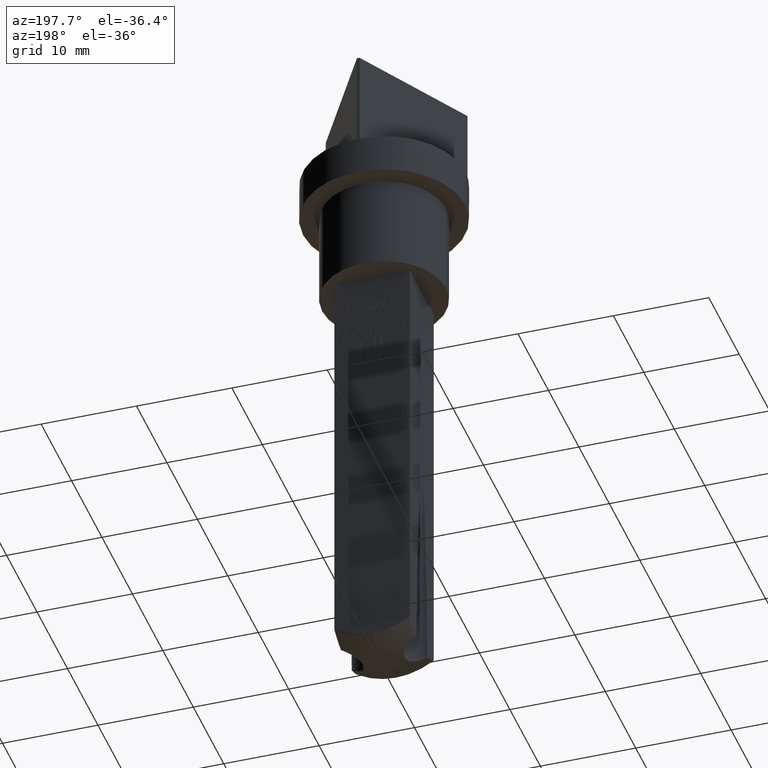
[diagram: clean part render]
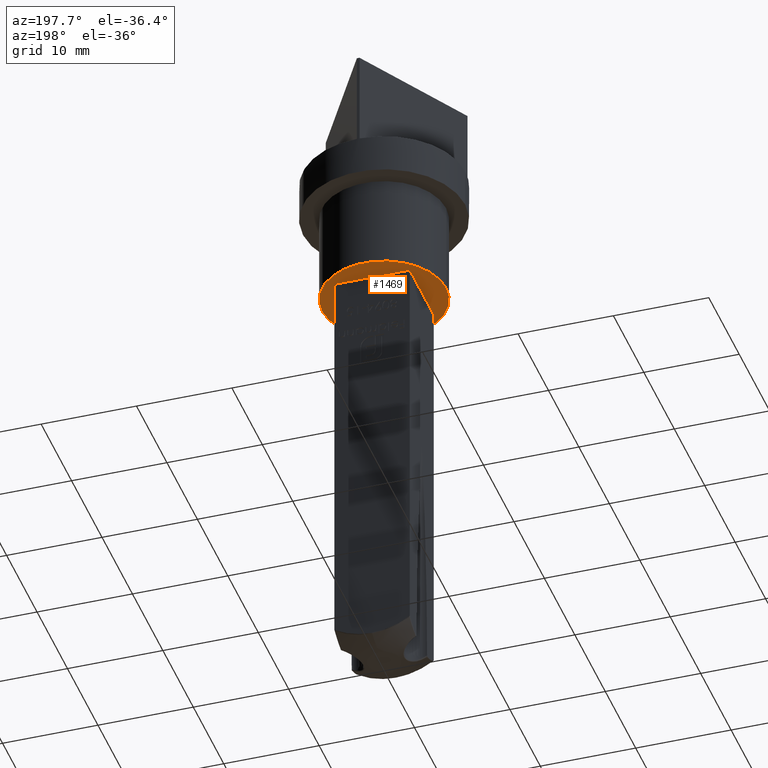
[diagram: same view with one face highlighted and labeled with its STEP entity id]
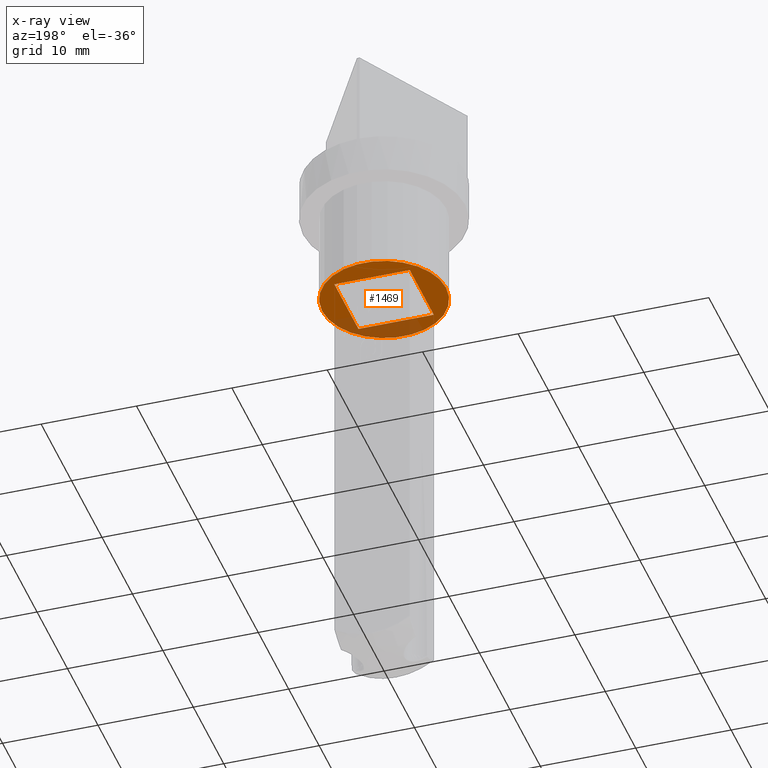
[diagram: x-ray of the same camera — body ghosted, the highlighted face saturated]
A machine part, auxiliary view. The second image highlights one B-rep face of the part: STEP entity #1469.
The next image is the same camera in x-ray: the body ghosted, the highlighted face saturated — about 26% of this face is hidden behind the body in this view.
In plain terms, the highlighted planar face has unit normal (0, 0, 1).
Its self-contained STEP definition (entity closure, byte-faithful):
#1189 = ORIENTED_EDGE ( 'NONE', *, *, #9612, .F. ) ;
#1469 = ADVANCED_FACE ( 'NONE', ( #5095, #7715 ), #5493, .F. ) ;
#1729 = EDGE_CURVE ( 'NONE', #10916, #8835, #13179, .T. ) ;
#1748 = LINE ( 'NONE', #10848, #10582 ) ;
#1759 = DIRECTION ( 'NONE',  ( -0.000000000000000000, -0.000000000000000000, 1.000000000000000000 ) ) ;
#1864 = DIRECTION ( 'NONE',  ( 1.000000000000000000, 0.000000000000000000, 0.000000000000000000 ) ) ;
#2040 = ORIENTED_EDGE ( 'NONE', *, *, #3616, .F. ) ;
#2333 = CARTESIAN_POINT ( 'NONE',  ( -6.500000000000000000, 7.960204194457795477E-16, -7.000000000000000000 ) ) ;
#2437 = ORIENTED_EDGE ( 'NONE', *, *, #1729, .F. ) ;
#2587 = AXIS2_PLACEMENT_3D ( 'NONE', #8484, #4042, #1864 ) ;
#2653 = CARTESIAN_POINT ( 'NONE',  ( 3.950000000000000178, 3.950000000000001066, -7.000000000000000000 ) ) ;
#3406 = ORIENTED_EDGE ( 'NONE', *, *, #6118, .F. ) ;
#3582 = EDGE_CURVE ( 'NONE', #12597, #13206, #5754, .T. ) ;
#3616 = EDGE_CURVE ( 'NONE', #13206, #12597, #3678, .T. ) ;
#3678 = CIRCLE ( 'NONE', #2587, 6.500000000000000000 ) ;
#3957 = CARTESIAN_POINT ( 'NONE',  ( 3.950000000000000178, 3.950000000000001066, -7.000000000000000000 ) ) ;
#4042 = DIRECTION ( 'NONE',  ( -0.000000000000000000, -0.000000000000000000, 1.000000000000000000 ) ) ;
#4145 = CARTESIAN_POINT ( 'NONE',  ( -3.950000000000001066, 3.950000000000001066, -7.000000000000000000 ) ) ;
#4319 = DIRECTION ( 'NONE',  ( 1.000000000000000000, 0.000000000000000000, -0.000000000000000000 ) ) ;
#4320 = CARTESIAN_POINT ( 'NONE',  ( -3.950000000000001066, 3.950000000000001066, -7.000000000000000000 ) ) ;
#5095 = FACE_BOUND ( 'NONE', #6994, .T. ) ;
#5331 = DIRECTION ( 'NONE',  ( -1.000000000000000000, 0.000000000000000000, 0.000000000000000000 ) ) ;
#5493 = PLANE ( 'NONE',  #8409 ) ;
#5537 = ORIENTED_EDGE ( 'NONE', *, *, #3582, .F. ) ;
#5689 = VECTOR ( 'NONE', #9559, 1000.000000000000000 ) ;
#5754 = CIRCLE ( 'NONE', #6287, 6.500000000000000000 ) ;
#6118 = EDGE_CURVE ( 'NONE', #8835, #6163, #1748, .T. ) ;
#6163 = VERTEX_POINT ( 'NONE', #7711 ) ;
#6165 = CARTESIAN_POINT ( 'NONE',  ( 0.000000000000000000, 0.000000000000000000, -7.000000000000000000 ) ) ;
#6287 = AXIS2_PLACEMENT_3D ( 'NONE', #6165, #1759, #12714 ) ;
#6785 = CARTESIAN_POINT ( 'NONE',  ( 3.950000000000000178, 3.950000000000001066, -7.000000000000000000 ) ) ;
#6994 = EDGE_LOOP ( 'NONE', ( #10269, #3406, #2437, #1189 ) ) ;
#7428 = EDGE_LOOP ( 'NONE', ( #2040, #5537 ) ) ;
#7625 = DIRECTION ( 'NONE',  ( 0.000000000000000000, 0.000000000000000000, 1.000000000000000000 ) ) ;
#7627 = CARTESIAN_POINT ( 'NONE',  ( 3.950000000000000178, -3.949999999999999734, -7.000000000000000000 ) ) ;
#7711 = CARTESIAN_POINT ( 'NONE',  ( -3.950000000000000178, -3.949999999999999734, -7.000000000000000000 ) ) ;
#7715 = FACE_OUTER_BOUND ( 'NONE', #7428, .T. ) ;
#8376 = VECTOR ( 'NONE', #10669, 1000.000000000000000 ) ;
#8409 = AXIS2_PLACEMENT_3D ( 'NONE', #13134, #7625, #4319 ) ;
#8448 = DIRECTION ( 'NONE',  ( -1.097926250618232273E-16, 1.000000000000000000, -0.000000000000000000 ) ) ;
#8484 = CARTESIAN_POINT ( 'NONE',  ( 0.000000000000000000, 0.000000000000000000, -7.000000000000000000 ) ) ;
#8835 = VERTEX_POINT ( 'NONE', #7627 ) ;
#8852 = VERTEX_POINT ( 'NONE', #4320 ) ;
#9155 = VECTOR ( 'NONE', #8448, 1000.000000000000000 ) ;
#9503 = EDGE_CURVE ( 'NONE', #6163, #8852, #10026, .T. ) ;
#9559 = DIRECTION ( 'NONE',  ( 1.000000000000000000, -0.000000000000000000, -0.000000000000000000 ) ) ;
#9612 = EDGE_CURVE ( 'NONE', #8852, #10916, #13764, .T. ) ;
#10026 = LINE ( 'NONE', #4145, #9155 ) ;
#10219 = CARTESIAN_POINT ( 'NONE',  ( 6.500000000000000000, 0.000000000000000000, -7.000000000000000000 ) ) ;
#10269 = ORIENTED_EDGE ( 'NONE', *, *, #9503, .F. ) ;
#10582 = VECTOR ( 'NONE', #5331, 1000.000000000000000 ) ;
#10669 = DIRECTION ( 'NONE',  ( 0.000000000000000000, -1.000000000000000000, 0.000000000000000000 ) ) ;
#10848 = CARTESIAN_POINT ( 'NONE',  ( 3.950000000000000178, -3.949999999999999734, -7.000000000000000000 ) ) ;
#10916 = VERTEX_POINT ( 'NONE', #6785 ) ;
#12597 = VERTEX_POINT ( 'NONE', #2333 ) ;
#12714 = DIRECTION ( 'NONE',  ( 1.000000000000000000, 0.000000000000000000, 0.000000000000000000 ) ) ;
#13134 = CARTESIAN_POINT ( 'NONE',  ( 0.000000000000000000, 0.000000000000000000, -7.000000000000000000 ) ) ;
#13179 = LINE ( 'NONE', #2653, #8376 ) ;
#13206 = VERTEX_POINT ( 'NONE', #10219 ) ;
#13764 = LINE ( 'NONE', #3957, #5689 ) ;